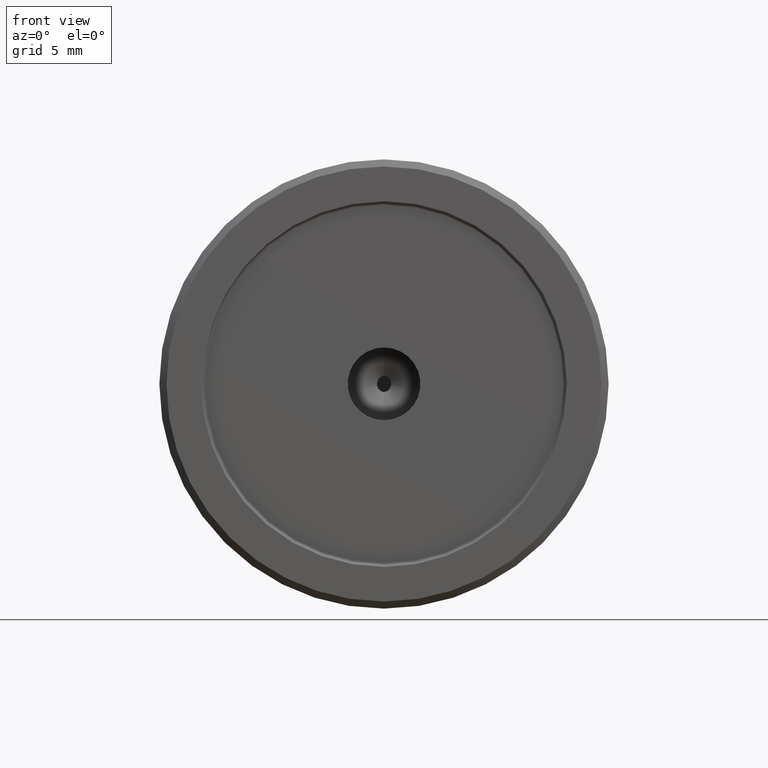
[diagram: clean part render]
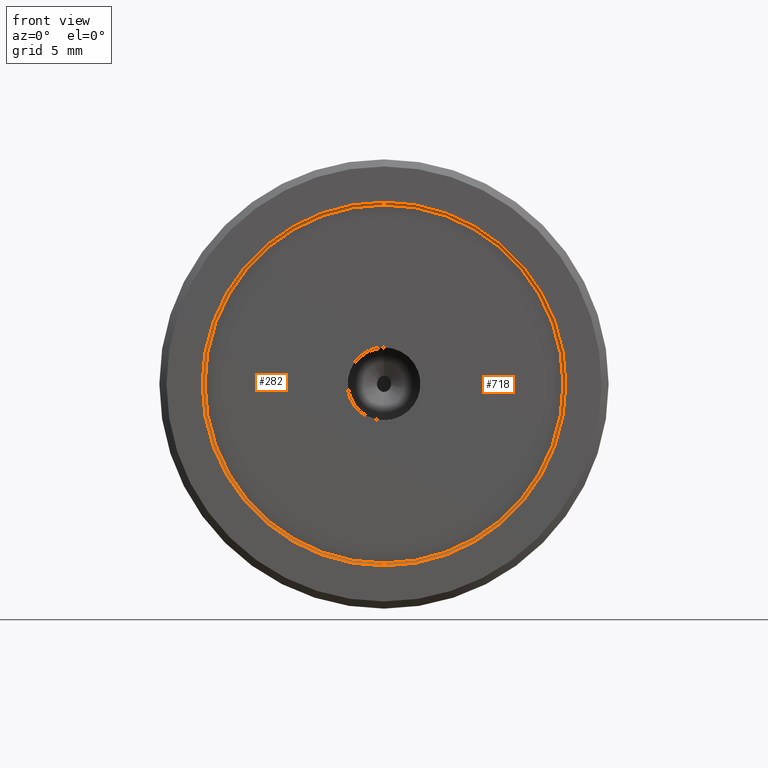
[diagram: same view with one multi-face feature highlighted, each face labeled with its STEP entity id]
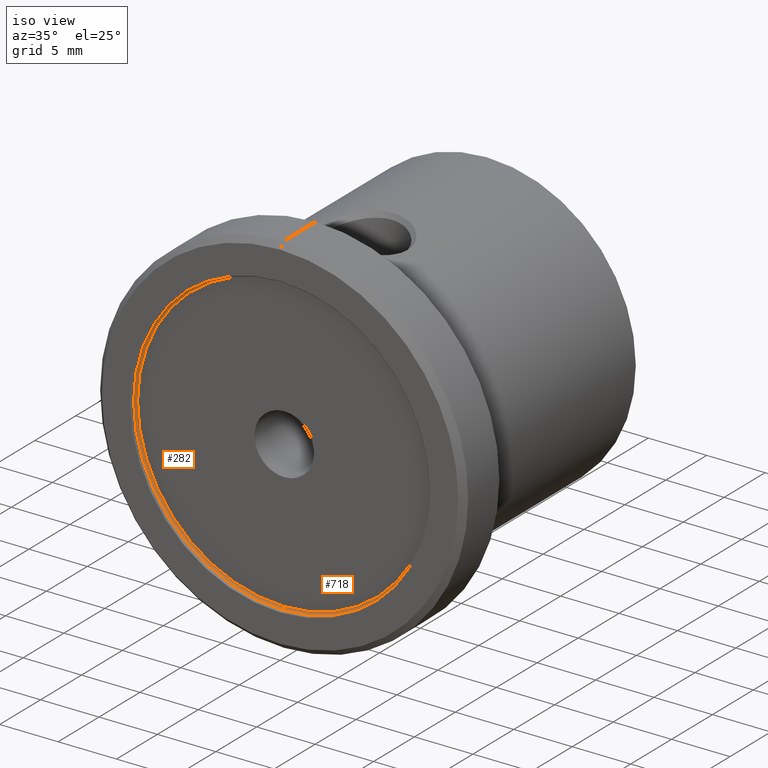
[diagram: same view with one multi-face feature highlighted, each face labeled with its STEP entity id]
A machine part, front view. The highlighted faces form ONE feature: a constant-radius fillet chain: 2 tangent blend faces with common blend radius 0.2 mm. The faces share edges in the B-rep.
A second angle (iso view) of the same feature is appended — it is thin or edge-on in the first view.
Their STEP definitions:
[1] entity #282 (Torus):
#22 = DIRECTION ( 'NONE',  ( 1.000000000000000000, 0.0000000000000000000, -1.224646799147353200E-016 ) ) ;
#54 = EDGE_LOOP ( 'NONE', ( #974, #872, #874, #693 ) ) ;
#123 = CARTESIAN_POINT ( 'NONE',  ( 0.0000000000000000000, 0.2999999999999981600, 0.0000000000000000000 ) ) ;
#153 = CARTESIAN_POINT ( 'NONE',  ( 0.0000000000000000000, 0.2999999999999981600, -12.75000000000000000 ) ) ;
#159 = FACE_OUTER_BOUND ( 'NONE', #54, .T. ) ;
#194 = DIRECTION ( 'NONE',  ( 0.0000000000000000000, 0.0000000000000000000, -1.000000000000000000 ) ) ;
#218 = DIRECTION ( 'NONE',  ( 0.0000000000000000000, 0.0000000000000000000, -1.000000000000000000 ) ) ;
#240 = VERTEX_POINT ( 'NONE', #1311 ) ;
#274 = CIRCLE ( 'NONE', #471, 0.2000000000000005100 ) ;
#282 = ADVANCED_FACE ( 'NONE', ( #159 ), #1145, .F. ) ;
#340 = DIRECTION ( 'NONE',  ( -0.0000000000000000000, -1.000000000000000000, -0.0000000000000000000 ) ) ;
#354 = CARTESIAN_POINT ( 'NONE',  ( 1.536931732929928000E-015, 0.3000000000000000400, 12.54999999999999900 ) ) ;
#386 = EDGE_CURVE ( 'NONE', #1241, #240, #274, .T. ) ;
#471 = AXIS2_PLACEMENT_3D ( 'NONE', #354, #22, #1336 ) ;
#477 = AXIS2_PLACEMENT_3D ( 'NONE', #1323, #1082, #218 ) ;
#553 = CIRCLE ( 'NONE', #790, 12.75000000000000000 ) ;
#597 = AXIS2_PLACEMENT_3D ( 'NONE', #781, #1342, #687 ) ;
#656 = DIRECTION ( 'NONE',  ( -0.0000000000000000000, -1.000000000000000000, -0.0000000000000000000 ) ) ;
#687 = DIRECTION ( 'NONE',  ( 0.0000000000000000000, 0.0000000000000000000, 1.000000000000000000 ) ) ;
#693 = ORIENTED_EDGE ( 'NONE', *, *, #1003, .F. ) ;
#721 = EDGE_CURVE ( 'NONE', #240, #1071, #553, .T. ) ;
#781 = CARTESIAN_POINT ( 'NONE',  ( 0.0000000000000000000, 0.3000000000000000400, -12.54999999999999900 ) ) ;
#790 = AXIS2_PLACEMENT_3D ( 'NONE', #123, #340, #1089 ) ;
#872 = ORIENTED_EDGE ( 'NONE', *, *, #386, .T. ) ;
#874 = ORIENTED_EDGE ( 'NONE', *, *, #721, .T. ) ;
#892 = CARTESIAN_POINT ( 'NONE',  ( 0.0000000000000000000, 0.5000000000000004400, -12.54999999999999900 ) ) ;
#974 = ORIENTED_EDGE ( 'NONE', *, *, #1244, .F. ) ;
#1003 = EDGE_CURVE ( 'NONE', #1030, #1071, #1303, .T. ) ;
#1030 = VERTEX_POINT ( 'NONE', #892 ) ;
#1071 = VERTEX_POINT ( 'NONE', #153 ) ;
#1082 = DIRECTION ( 'NONE',  ( -0.0000000000000000000, -1.000000000000000000, -0.0000000000000000000 ) ) ;
#1089 = DIRECTION ( 'NONE',  ( 0.0000000000000000000, 0.0000000000000000000, -1.000000000000000000 ) ) ;
#1145 = TOROIDAL_SURFACE ( 'NONE', #477, 12.54999999999999900, 0.2000000000000002600 ) ;
#1164 = CIRCLE ( 'NONE', #1354, 12.54999999999999900 ) ;
#1241 = VERTEX_POINT ( 'NONE', #1296 ) ;
#1244 = EDGE_CURVE ( 'NONE', #1241, #1030, #1164, .T. ) ;
#1296 = CARTESIAN_POINT ( 'NONE',  ( 1.549178200921401800E-015, 0.5000000000000004400, 12.54999999999999900 ) ) ;
#1303 = CIRCLE ( 'NONE', #597, 0.2000000000000005100 ) ;
#1311 = CARTESIAN_POINT ( 'NONE',  ( 1.561424668912875100E-015, 0.2999999999999981600, 12.75000000000000000 ) ) ;
#1314 = CARTESIAN_POINT ( 'NONE',  ( 0.0000000000000000000, 0.5000000000000004400, 0.0000000000000000000 ) ) ;
#1323 = CARTESIAN_POINT ( 'NONE',  ( 0.0000000000000000000, 0.3000000000000000400, 0.0000000000000000000 ) ) ;
#1336 = DIRECTION ( 'NONE',  ( -1.224646799147353200E-016, 0.0000000000000000000, -1.000000000000000000 ) ) ;
#1342 = DIRECTION ( 'NONE',  ( -1.000000000000000000, 0.0000000000000000000, 0.0000000000000000000 ) ) ;
#1354 = AXIS2_PLACEMENT_3D ( 'NONE', #1314, #656, #194 ) ;
[2] entity #718 (Torus):
#3 = DIRECTION ( 'NONE',  ( 0.0000000000000000000, 0.0000000000000000000, -1.000000000000000000 ) ) ;
#22 = DIRECTION ( 'NONE',  ( 1.000000000000000000, 0.0000000000000000000, -1.224646799147353200E-016 ) ) ;
#102 = DIRECTION ( 'NONE',  ( 0.0000000000000000000, 0.0000000000000000000, -1.000000000000000000 ) ) ;
#146 = CIRCLE ( 'NONE', #182, 12.54999999999999900 ) ;
#153 = CARTESIAN_POINT ( 'NONE',  ( 0.0000000000000000000, 0.2999999999999981600, -12.75000000000000000 ) ) ;
#182 = AXIS2_PLACEMENT_3D ( 'NONE', #1310, #740, #102 ) ;
#206 = ORIENTED_EDGE ( 'NONE', *, *, #386, .F. ) ;
#240 = VERTEX_POINT ( 'NONE', #1311 ) ;
#274 = CIRCLE ( 'NONE', #471, 0.2000000000000005100 ) ;
#354 = CARTESIAN_POINT ( 'NONE',  ( 1.536931732929928000E-015, 0.3000000000000000400, 12.54999999999999900 ) ) ;
#386 = EDGE_CURVE ( 'NONE', #1241, #240, #274, .T. ) ;
#430 = ORIENTED_EDGE ( 'NONE', *, *, #1003, .T. ) ;
#471 = AXIS2_PLACEMENT_3D ( 'NONE', #354, #22, #1336 ) ;
#476 = ORIENTED_EDGE ( 'NONE', *, *, #911, .F. ) ;
#543 = CARTESIAN_POINT ( 'NONE',  ( 0.0000000000000000000, 0.3000000000000000400, 0.0000000000000000000 ) ) ;
#597 = AXIS2_PLACEMENT_3D ( 'NONE', #781, #1342, #687 ) ;
#655 = EDGE_CURVE ( 'NONE', #1071, #240, #1073, .T. ) ;
#687 = DIRECTION ( 'NONE',  ( 0.0000000000000000000, 0.0000000000000000000, 1.000000000000000000 ) ) ;
#711 = AXIS2_PLACEMENT_3D ( 'NONE', #543, #983, #1084 ) ;
#718 = ADVANCED_FACE ( 'NONE', ( #1379 ), #1344, .F. ) ;
#740 = DIRECTION ( 'NONE',  ( -0.0000000000000000000, -1.000000000000000000, -0.0000000000000000000 ) ) ;
#761 = CARTESIAN_POINT ( 'NONE',  ( 0.0000000000000000000, 0.2999999999999981600, 0.0000000000000000000 ) ) ;
#781 = CARTESIAN_POINT ( 'NONE',  ( 0.0000000000000000000, 0.3000000000000000400, -12.54999999999999900 ) ) ;
#870 = DIRECTION ( 'NONE',  ( -0.0000000000000000000, -1.000000000000000000, -0.0000000000000000000 ) ) ;
#892 = CARTESIAN_POINT ( 'NONE',  ( 0.0000000000000000000, 0.5000000000000004400, -12.54999999999999900 ) ) ;
#911 = EDGE_CURVE ( 'NONE', #1030, #1241, #146, .T. ) ;
#983 = DIRECTION ( 'NONE',  ( -0.0000000000000000000, -1.000000000000000000, -0.0000000000000000000 ) ) ;
#1003 = EDGE_CURVE ( 'NONE', #1030, #1071, #1303, .T. ) ;
#1030 = VERTEX_POINT ( 'NONE', #892 ) ;
#1066 = ORIENTED_EDGE ( 'NONE', *, *, #655, .T. ) ;
#1071 = VERTEX_POINT ( 'NONE', #153 ) ;
#1073 = CIRCLE ( 'NONE', #1368, 12.75000000000000000 ) ;
#1084 = DIRECTION ( 'NONE',  ( 0.0000000000000000000, 0.0000000000000000000, -1.000000000000000000 ) ) ;
#1204 = EDGE_LOOP ( 'NONE', ( #206, #476, #430, #1066 ) ) ;
#1241 = VERTEX_POINT ( 'NONE', #1296 ) ;
#1296 = CARTESIAN_POINT ( 'NONE',  ( 1.549178200921401800E-015, 0.5000000000000004400, 12.54999999999999900 ) ) ;
#1303 = CIRCLE ( 'NONE', #597, 0.2000000000000005100 ) ;
#1310 = CARTESIAN_POINT ( 'NONE',  ( 0.0000000000000000000, 0.5000000000000004400, 0.0000000000000000000 ) ) ;
#1311 = CARTESIAN_POINT ( 'NONE',  ( 1.561424668912875100E-015, 0.2999999999999981600, 12.75000000000000000 ) ) ;
#1336 = DIRECTION ( 'NONE',  ( -1.224646799147353200E-016, 0.0000000000000000000, -1.000000000000000000 ) ) ;
#1342 = DIRECTION ( 'NONE',  ( -1.000000000000000000, 0.0000000000000000000, 0.0000000000000000000 ) ) ;
#1344 = TOROIDAL_SURFACE ( 'NONE', #711, 12.54999999999999900, 0.2000000000000002600 ) ;
#1368 = AXIS2_PLACEMENT_3D ( 'NONE', #761, #870, #3 ) ;
#1379 = FACE_OUTER_BOUND ( 'NONE', #1204, .T. ) ;